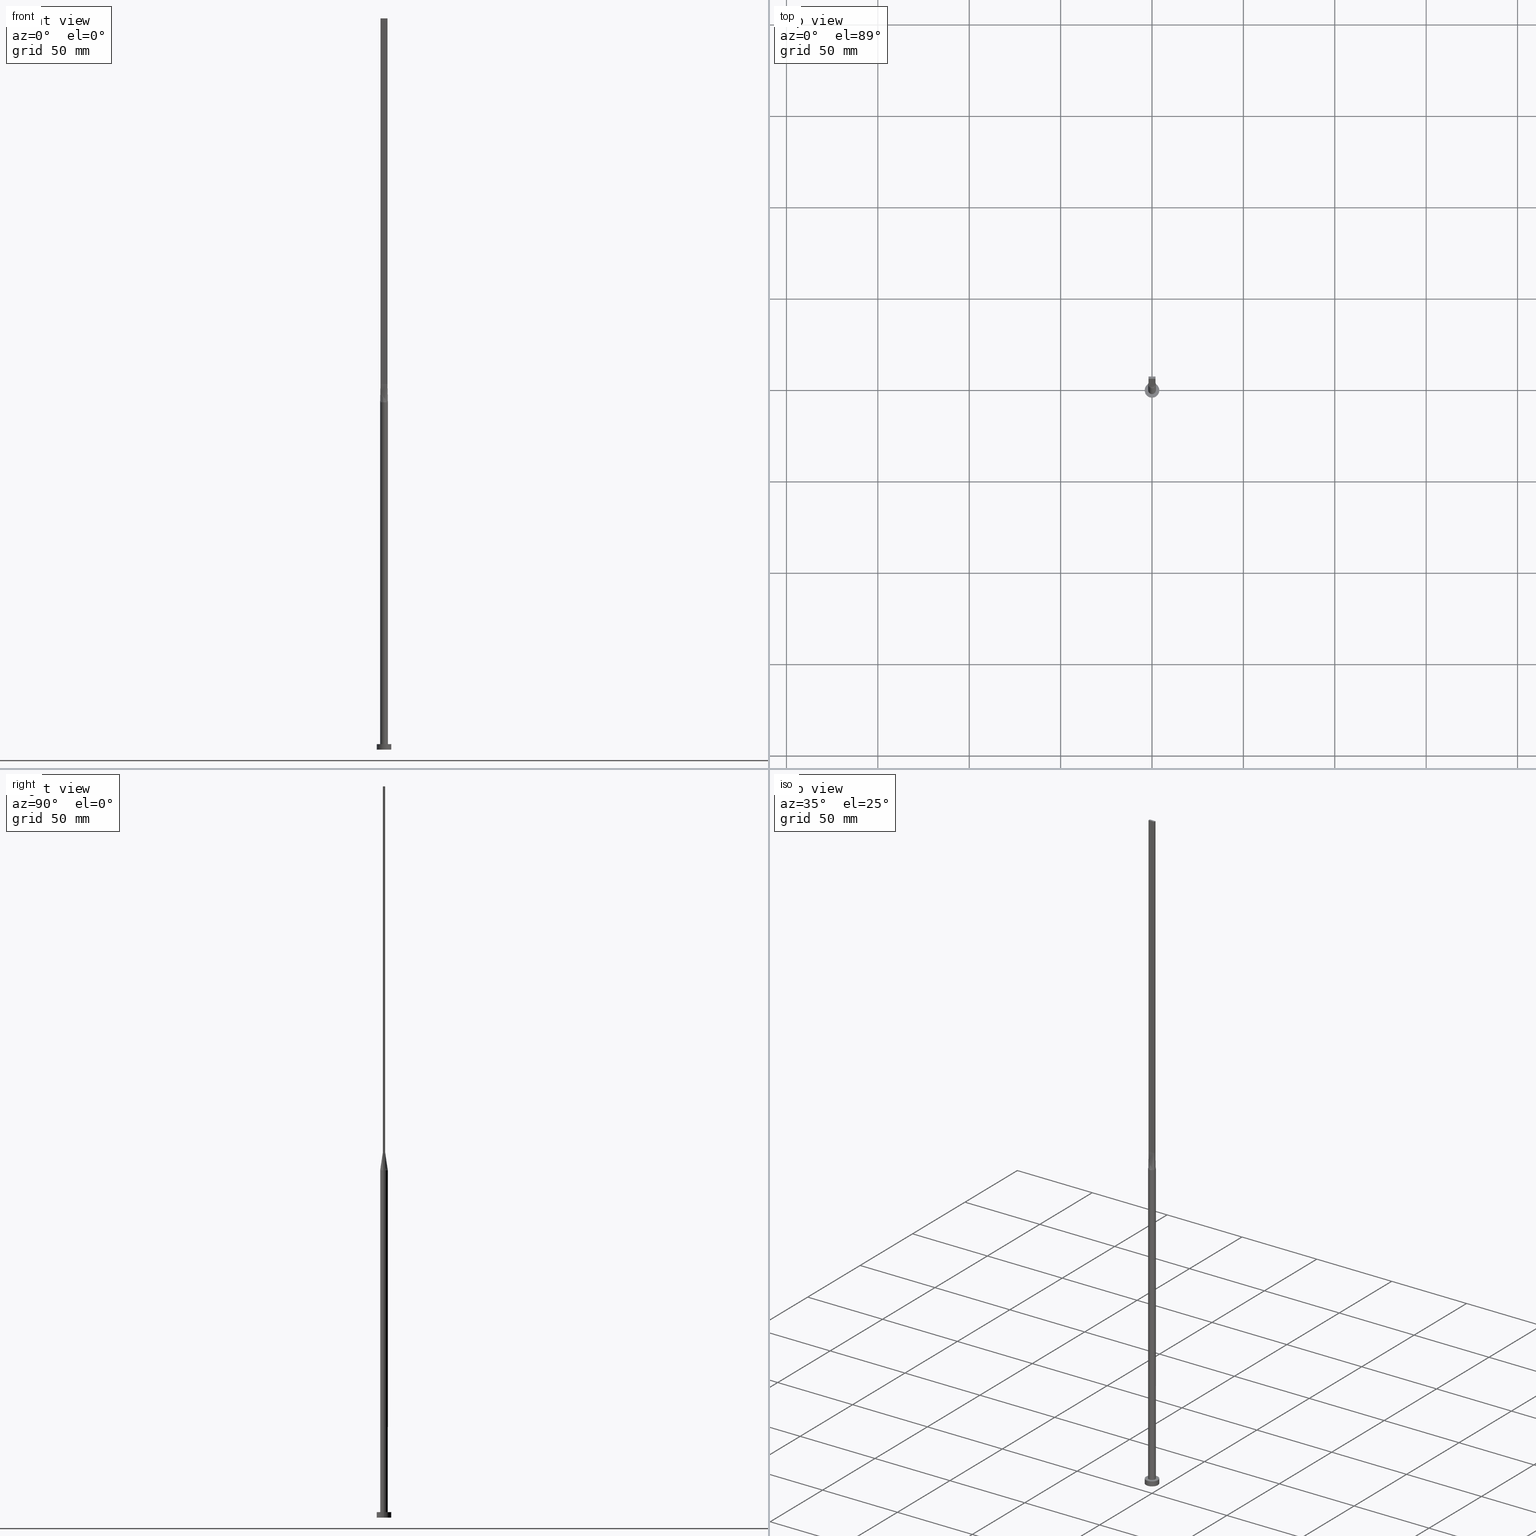
[diagram: canonical four-view strip — front | top / right | iso, engineering-drawing reading convention]
A machine part, canonical four-view strip (front | top / right | iso — engineering-drawing reading convention). The complete STEP part file that produces these views, byte-faithful:
ISO-10303-21;
HEADER;
FILE_DESCRIPTION (( 'STEP AP203' ),
    '1' );
FILE_NAME ('0027.STEP',
    '2023-02-13T13:18:16',
    ( '' ),
    ( '' ),
    'SwSTEP 2.0',
    'SolidWorks 2019',
    '' );
FILE_SCHEMA (( 'CONFIG_CONTROL_DESIGN' ));
ENDSEC;

DATA;
#1 = ORIENTED_EDGE ( 'NONE', *, *, #455, .T. ) ;
#2 = EDGE_CURVE ( 'NONE', #216, #61, #432, .T. ) ;
#3 = CARTESIAN_POINT ( 'NONE',  ( -1.899999999999999467, 0.3999999999999995226, 200.0000000000000000 ) ) ;
#4 = CARTESIAN_POINT ( 'NONE',  ( -1.741666666666666474, -0.5999999999999994227, 200.0000000000000000 ) ) ;
#5 = ORIENTED_EDGE ( 'NONE', *, *, #483, .F. ) ;
#6 = PLANE ( 'NONE',  #385 ) ;
#7 = APPROVAL_PERSON_ORGANIZATION ( #375, #390, #331 ) ;
#8 = CARTESIAN_POINT ( 'NONE',  ( -1.529462611013499451, 1.456669187245239527, 190.0000000000000000 ) ) ;
#9 = CARTESIAN_POINT ( 'NONE',  ( -1.184262492297964098, -1.748903470433446294, 189.9999999999999716 ) ) ;
#10 = EDGE_LOOP ( 'NONE', ( #75, #365, #457, #434 ) ) ;
#11 = CARTESIAN_POINT ( 'NONE',  ( 1.899999999999999467, 0.4000000000000005218, 200.0000000000000000 ) ) ;
#12 = CARTESIAN_POINT ( 'NONE',  ( 1.899999999999999689, 0.6000000000000001998, 200.0000000000000000 ) ) ;
#13 = ORIENTED_EDGE ( 'NONE', *, *, #519, .T. ) ;
#14 = VECTOR ( 'NONE', #33, 1000.000000000000000 ) ;
#15 = ORIENTED_EDGE ( 'NONE', *, *, #237, .F. ) ;
#16 = CARTESIAN_POINT ( 'NONE',  ( -2.100000000000000089, -1.284268198382905442E-16, 190.0000000000000000 ) ) ;
#17 = VERTEX_POINT ( 'NONE', #12 ) ;
#18 = CARTESIAN_POINT ( 'NONE',  ( 0.7916666666666656305, -0.5999999999999996447, 200.0000000000000000 ) ) ;
#19 = LINE ( 'NONE', #232, #167 ) ;
#20 = CARTESIAN_POINT ( 'NONE',  ( -1.899999999999999911, -0.5999999999999995337, 400.0000000000000000 ) ) ;
#21 = EDGE_CURVE ( 'NONE', #563, #323, #461, .T. ) ;
#22 = FACE_OUTER_BOUND ( 'NONE', #10, .T. ) ;
#23 = DIRECTION ( 'NONE',  ( 5.706327223607920020E-17, 1.000000000000000000, -0.000000000000000000 ) ) ;
#24 = PERSON_AND_ORGANIZATION ( #182, #506 ) ;
#25 = AXIS2_PLACEMENT_3D ( 'NONE', #307, #48, #487 ) ;
#26 = PLANE ( 'NONE',  #522 ) ;
#27 = EDGE_CURVE ( 'NONE', #39, #323, #450, .T. ) ;
#28 = MANIFOLD_SOLID_BREP ( 'P�idat vysunut�m5', #142 ) ;
#29 = CARTESIAN_POINT ( 'NONE',  ( -1.741666666666666474, 0.6000000000000000888, 200.0000000000000000 ) ) ;
#30 = COORDINATED_UNIVERSAL_TIME_OFFSET ( 1, 0, .AHEAD. ) ;
#31 = CYLINDRICAL_SURFACE ( 'NONE', #466, 2.100000000000000089 ) ;
#32 = DIRECTION ( 'NONE',  ( 0.000000000000000000, 0.000000000000000000, 1.000000000000000000 ) ) ;
#33 = DIRECTION ( 'NONE',  ( -0.000000000000000000, -0.000000000000000000, -1.000000000000000000 ) ) ;
#34 = SECURITY_CLASSIFICATION_LEVEL ( 'unclassified' ) ;
#35 = LOCAL_TIME ( 14, 18, 16.00000000000000000, #30 ) ;
#36 = CARTESIAN_POINT ( 'NONE',  ( 0.000000000000000000, 0.000000000000000000, 3.000000000000000000 ) ) ;
#37 = CARTESIAN_POINT ( 'NONE',  ( 1.667357759214464830, -1.291791096182927534, 190.0000000000000568 ) ) ;
#38 = EDGE_CURVE ( 'NONE', #283, #536, #227, .T. ) ;
#39 = VERTEX_POINT ( 'NONE', #371 ) ;
#40 = CARTESIAN_POINT ( 'NONE',  ( 1.583333333333332149, -0.5999999999999996447, 200.0000000000000000 ) ) ;
#41 = EDGE_LOOP ( 'NONE', ( #532, #272, #58, #57 ) ) ;
#42 = DIRECTION ( 'NONE',  ( 0.000000000000000000, 0.000000000000000000, 1.000000000000000000 ) ) ;
#43 = LINE ( 'NONE', #215, #476 ) ;
#44 = ORIENTED_EDGE ( 'NONE', *, *, #45, .F. ) ;
#45 = EDGE_CURVE ( 'NONE', #39, #557, #373, .T. ) ;
#46 = PRODUCT ( '0027', '0027', '', ( #239 ) ) ;
#47 = CARTESIAN_POINT ( 'NONE',  ( -0.9765948449220485106, -1.875594675604967509, 190.0000000000000284 ) ) ;
#48 = DIRECTION ( 'NONE',  ( 0.000000000000000000, 0.000000000000000000, 1.000000000000000000 ) ) ;
#49 = UNCERTAINTY_MEASURE_WITH_UNIT (LENGTH_MEASURE( 1.000000000000000082E-05 ), #545, 'distance_accuracy_value', 'NONE');
#50 = DIRECTION ( 'NONE',  ( 1.000000000000000000, -1.776356839400250465E-15, 0.000000000000000000 ) ) ;
#51 = CARTESIAN_POINT ( 'NONE',  ( -0.9765948449220482885, 1.875594675604967509, 189.9999999999999716 ) ) ;
#52 = CARTESIAN_POINT ( 'NONE',  ( -1.529462611013499229, -1.456669187245239749, 189.9999999999999716 ) ) ;
#53 = AXIS2_PLACEMENT_3D ( 'NONE', #436, #312, #82 ) ;
#54 = AXIS2_PLACEMENT_3D ( 'NONE', #515, #236, #416 ) ;
#55 = AXIS2_PLACEMENT_3D ( 'NONE', #209, #42, #124 ) ;
#56 = CARTESIAN_POINT ( 'NONE',  ( -1.952271707612931895, 0.7915068550356629817, 190.0000000000000568 ) ) ;
#57 = ORIENTED_EDGE ( 'NONE', *, *, #290, .T. ) ;
#58 = ORIENTED_EDGE ( 'NONE', *, *, #304, .F. ) ;
#59 = CARTESIAN_POINT ( 'NONE',  ( -1.899999999999999911, -0.5999999999999995337, 200.0000000000000000 ) ) ;
#60 = ADVANCED_FACE ( 'NONE', ( #269 ), #6, .F. ) ;
#61 = VERTEX_POINT ( 'NONE', #228 ) ;
#62 = CARTESIAN_POINT ( 'NONE',  ( 1.529462611013499451, 1.456669187245239527, 190.0000000000000284 ) ) ;
#63 = CARTESIAN_POINT ( 'NONE',  ( -1.899999999999999911, -0.5999999999999995337, 200.0000000000000000 ) ) ;
#64 = CARTESIAN_POINT ( 'NONE',  ( 0.000000000000000000, 0.000000000000000000, 3.000000000000000000 ) ) ;
#65 = CARTESIAN_POINT ( 'NONE',  ( -1.108333333333333393, 0.6000000000000000888, 200.0000000000000000 ) ) ;
#66 = CALENDAR_DATE ( 2023, 13, 2 ) ;
#67 = ORIENTED_EDGE ( 'NONE', *, *, #483, .T. ) ;
#68 = CARTESIAN_POINT ( 'NONE',  ( -0.2565105576742081062, -2.100000000000000089, 190.0000000000000284 ) ) ;
#69 = PLANE ( 'NONE',  #213 ) ;
#70 = CARTESIAN_POINT ( 'NONE',  ( -2.002523596781697890, 0.6323758726679044040, 190.0000000000000000 ) ) ;
#71 = VECTOR ( 'NONE', #369, 1000.000000000000000 ) ;
#72 = CARTESIAN_POINT ( 'NONE',  ( 0.9765948449220478444, -1.875594675604967954, 189.9999999999999716 ) ) ;
#73 = CYLINDRICAL_SURFACE ( 'NONE', #341, 4.000000000000000000 ) ;
#74 = CARTESIAN_POINT ( 'NONE',  ( 0.5124799074986362557, 2.051574327850739454, 190.0000000000000284 ) ) ;
#75 = ORIENTED_EDGE ( 'NONE', *, *, #21, .T. ) ;
#76 = CARTESIAN_POINT ( 'NONE',  ( 2.099999999999999645, -0.2158003972066312171, 190.0000000000000000 ) ) ;
#77 = LINE ( 'NONE', #250, #14 ) ;
#78 = DATE_AND_TIME ( #574, #420 ) ;
#79 = SHAPE_DEFINITION_REPRESENTATION ( #90, #303 ) ;
#80 = EDGE_LOOP ( 'NONE', ( #144, #358, #211, #550 ) ) ;
#81 = EDGE_CURVE ( 'NONE', #323, #17, #364, .T. ) ;
#82 = DIRECTION ( 'NONE',  ( 1.000000000000000000, 0.000000000000000000, 0.000000000000000000 ) ) ;
#83 = DIRECTION ( 'NONE',  ( 1.000000000000000000, 0.000000000000000000, 0.000000000000000000 ) ) ;
#84 = VECTOR ( 'NONE', #178, 1000.000000000000114 ) ;
#85 = ORIENTED_EDGE ( 'NONE', *, *, #38, .T. ) ;
#86 = EDGE_CURVE ( 'NONE', #186, #536, #554, .T. ) ;
#87 = DATE_AND_TIME ( #520, #222 ) ;
#88 = DESIGN_CONTEXT ( 'detailed design', #445, 'design' ) ;
#89 = CARTESIAN_POINT ( 'NONE',  ( 1.952271707612931895, 0.7915068550356627597, 190.0000000000000000 ) ) ;
#90 = PRODUCT_DEFINITION_SHAPE ( 'NONE', 'NONE',  #497 ) ;
#91 = DIRECTION ( 'NONE',  ( 1.000000000000000000, -5.706327223607918787E-17, 0.000000000000000000 ) ) ;
#92 = CARTESIAN_POINT ( 'NONE',  ( -1.899999999999999467, 0.1999999999999992895, 200.0000000000000000 ) ) ;
#93 = CARTESIAN_POINT ( 'NONE',  ( -1.952271707612931895, -0.7915068550356626487, 189.9999999999999716 ) ) ;
#94 = ORIENTED_EDGE ( 'NONE', *, *, #219, .F. ) ;
#95 = DIRECTION ( 'NONE',  ( 0.000000000000000000, 0.000000000000000000, 1.000000000000000000 ) ) ;
#96 = VERTEX_POINT ( 'NONE', #20 ) ;
#97 = CARTESIAN_POINT ( 'NONE',  ( -1.899999999999999689, 0.6000000000000001998, 200.0000000000000000 ) ) ;
#98 = DIRECTION ( 'NONE',  ( -0.000000000000000000, -0.000000000000000000, -1.000000000000000000 ) ) ;
#99 = EDGE_CURVE ( 'NONE', #96, #563, #405, .T. ) ;
#100 = AXIS2_PLACEMENT_3D ( 'NONE', #489, #490, #83 ) ;
#101 = CARTESIAN_POINT ( 'NONE',  ( -0.7916666666666668517, -0.5999999999999994227, 200.0000000000000000 ) ) ;
#102 = ORIENTED_EDGE ( 'NONE', *, *, #381, .F. ) ;
#103 = VERTEX_POINT ( 'NONE', #16 ) ;
#104 = CC_DESIGN_DATE_AND_TIME_ASSIGNMENT ( #110, #203, ( #497 ) ) ;
#105 = EDGE_LOOP ( 'NONE', ( #254, #412, #240, #1 ) ) ;
#106 = ORIENTED_EDGE ( 'NONE', *, *, #328, .F. ) ;
#107 = LOCAL_TIME ( 14, 18, 16.00000000000000000, #428 ) ;
#108 = DIRECTION ( 'NONE',  ( 1.807003620809174878E-16, 1.000000000000000000, 0.000000000000000000 ) ) ;
#109 = CARTESIAN_POINT ( 'NONE',  ( -0.7916666666666666297, 0.6000000000000000888, 200.0000000000000284 ) ) ;
#110 = DATE_AND_TIME ( #207, #35 ) ;
#111 = ORIENTED_EDGE ( 'NONE', *, *, #568, .T. ) ;
#112 = CARTESIAN_POINT ( 'NONE',  ( -1.529462611013499451, 1.456669187245239527, 190.0000000000000000 ) ) ;
#113 = APPROVAL_ROLE ( '' ) ;
#114 = AXIS2_PLACEMENT_3D ( 'NONE', #411, #192, #50 ) ;
#115 = CARTESIAN_POINT ( 'NONE',  ( -1.899999999999999689, 0.6000000000000001998, 200.0000000000000000 ) ) ;
#116 = ORIENTED_EDGE ( 'NONE', *, *, #313, .T. ) ;
#117 = FACE_OUTER_BOUND ( 'NONE', #280, .T. ) ;
#118 = CARTESIAN_POINT ( 'NONE',  ( -1.583333333333333259, 0.6000000000000000888, 200.0000000000000000 ) ) ;
#119 = FACE_OUTER_BOUND ( 'NONE', #41, .T. ) ;
#120 = LINE ( 'NONE', #229, #71 ) ;
#121 = DATE_TIME_ROLE ( 'classification_date' ) ;
#122 = ADVANCED_FACE ( 'NONE', ( #456 ), #181, .T. ) ;
#123 = VECTOR ( 'NONE', #360, 1000.000000000000000 ) ;
#124 = DIRECTION ( 'NONE',  ( 1.000000000000000000, 0.000000000000000000, 0.000000000000000000 ) ) ;
#125 = CARTESIAN_POINT ( 'NONE',  ( -1.899999999999999689, 0.6000000000000001998, 400.0000000000000000 ) ) ;
#126 = ORIENTED_EDGE ( 'NONE', *, *, #464, .T. ) ;
#127 = CARTESIAN_POINT ( 'NONE',  ( 0.000000000000000000, 0.000000000000000000, 190.0000000000000000 ) ) ;
#128 = EDGE_CURVE ( 'NONE', #563, #470, #465, .T. ) ;
#129 = CARTESIAN_POINT ( 'NONE',  ( -2.002523596781697890, -0.6323758726679044040, 190.0000000000000000 ) ) ;
#130 = CARTESIAN_POINT ( 'NONE',  ( 0.000000000000000000, 0.000000000000000000, 3.000000000000000000 ) ) ;
#131 = VECTOR ( 'NONE', #383, 1000.000000000000114 ) ;
#132 = ORIENTED_EDGE ( 'NONE', *, *, #430, .F. ) ;
#133 = APPROVAL_DATE_TIME ( #87, #163 ) ;
#134 = CIRCLE ( 'NONE', #409, 2.100000000000000089 ) ;
#135 = CARTESIAN_POINT ( 'NONE',  ( -1.899999999999999911, -0.5999999999999995337, 400.0000000000000000 ) ) ;
#136 = CARTESIAN_POINT ( 'NONE',  ( -1.878511276496549032, 0.9591670956957809580, 190.0000000000000853 ) ) ;
#137 = CARTESIAN_POINT ( 'NONE',  ( 1.899999999999999689, 0.6000000000000001998, 200.0000000000000000 ) ) ;
#138 = ORIENTED_EDGE ( 'NONE', *, *, #335, .T. ) ;
#139 = FACE_OUTER_BOUND ( 'NONE', #449, .T. ) ;
#140 = EDGE_CURVE ( 'NONE', #172, #17, #155, .T. ) ;
#141 = CARTESIAN_POINT ( 'NONE',  ( 1.899999999999999689, 0.6000000000000001998, 400.0000000000000000 ) ) ;
#142 = CLOSED_SHELL ( 'NONE', ( #122, #395, #370, #257, #402, #535, #529, #553, #561, #145, #60, #346, #179, #423, #543 ) ) ;
#143 = ORIENTED_EDGE ( 'NONE', *, *, #205, .F. ) ;
#144 = ORIENTED_EDGE ( 'NONE', *, *, #328, .T. ) ;
#145 = ADVANCED_FACE ( 'NONE', ( #288 ), #548, .T. ) ;
#146 = DIRECTION ( 'NONE',  ( -1.000000000000000000, 0.000000000000000000, 0.000000000000000000 ) ) ;
#147 = ORIENTED_EDGE ( 'NONE', *, *, #509, .F. ) ;
#148 = CARTESIAN_POINT ( 'NONE',  ( 1.741666666666666474, 0.6000000000000001998, 200.0000000000000000 ) ) ;
#149 = ORIENTED_EDGE ( 'NONE', *, *, #464, .F. ) ;
#150 = CARTESIAN_POINT ( 'NONE',  ( -0.1583333333333337423, 0.6000000000000000888, 200.0000000000000568 ) ) ;
#151 = EDGE_LOOP ( 'NONE', ( #408, #138 ) ) ;
#152 = CARTESIAN_POINT ( 'NONE',  ( -0.9765948449220482885, 1.875594675604967509, 189.9999999999999716 ) ) ;
#153 = COORDINATED_UNIVERSAL_TIME_OFFSET ( 1, 0, .AHEAD. ) ;
#154 = PRODUCT_RELATED_PRODUCT_CATEGORY ( 'detail', '', ( #46 ) ) ;
#155 = LINE ( 'NONE', #467, #577 ) ;
#156 = DIRECTION ( 'NONE',  ( 0.000000000000000000, 0.000000000000000000, 1.000000000000000000 ) ) ;
#157 = DIRECTION ( 'NONE',  ( 0.000000000000000000, 0.000000000000000000, 1.000000000000000000 ) ) ;
#158 = CARTESIAN_POINT ( 'NONE',  ( -1.184262492297963876, 1.748903470433446294, 190.0000000000000284 ) ) ;
#159 = DATE_AND_TIME ( #66, #107 ) ;
#160 = CARTESIAN_POINT ( 'NONE',  ( 1.899999999999999467, 0.2000000000000006772, 200.0000000000000000 ) ) ;
#161 = CC_DESIGN_APPROVAL ( #163, ( #177 ) ) ;
#162 = LINE ( 'NONE', #486, #263 ) ;
#163 = APPROVAL ( #194, 'NEUR�EN�' ) ;
#164 = ORIENTED_EDGE ( 'NONE', *, *, #81, .F. ) ;
#165 = CARTESIAN_POINT ( 'NONE',  ( 4.000000000000000000, 4.898587196589412829E-16, 0.000000000000000000 ) ) ;
#166 = DIRECTION ( 'NONE',  ( -0.000000000000000000, -0.000000000000000000, -1.000000000000000000 ) ) ;
#167 = VECTOR ( 'NONE', #424, 1000.000000000000000 ) ;
#168 = AXIS2_PLACEMENT_3D ( 'NONE', #567, #156, #530 ) ;
#169 = ORIENTED_EDGE ( 'NONE', *, *, #198, .T. ) ;
#170 = CARTESIAN_POINT ( 'NONE',  ( 0.9765948449220478444, 1.875594675604967065, 189.9999999999999716 ) ) ;
#171 = DIRECTION ( 'NONE',  ( -1.807003620809174632E-16, -1.000000000000000000, 0.000000000000000000 ) ) ;
#172 = VERTEX_POINT ( 'NONE', #238 ) ;
#173 = B_SPLINE_SURFACE_WITH_KNOTS ( 'NONE', 3, 1, ( 
 ( #319, #448 ),
 ( #93, #4 ),
 ( #180, #453 ),
 ( #355, #176 ),
 ( #52, #546 ),
 ( #9, #101 ),
 ( #47, #399 ),
 ( #318, #502 ),
 ( #68, #241 ),
 ( #235, #419 ),
 ( #329, #562 ),
 ( #72, #199 ),
 ( #406, #18 ),
 ( #368, #510 ),
 ( #37, #306 ),
 ( #302, #40 ),
 ( #255, #433 ),
 ( #338, #392 ) ),
 .UNSPECIFIED., .F., .F., .F.,
 ( 4, 2, 2, 2, 2, 2, 2, 2, 4 ),
 ( 2, 2 ),
 ( 0.000000000000000000, 0.1250000000000000833, 0.2500000000000001110, 0.3750000000000001110, 0.5000000000000001110, 0.6250000000000001110, 0.7500000000000000000, 0.8750000000000000000, 1.000000000000000000 ),
 ( 0.000000000000000000, 1.000000000000000000 ),
 .UNSPECIFIED. ) ;
#174 = EDGE_LOOP ( 'NONE', ( #463, #469, #397, #446 ) ) ;
#175 = CARTESIAN_POINT ( 'NONE',  ( -1.899999999999999911, -0.5999999999999995337, 200.0000000000000000 ) ) ;
#176 = CARTESIAN_POINT ( 'NONE',  ( -1.266666666666666607, -0.5999999999999994227, 200.0000000000000000 ) ) ;
#177 = SECURITY_CLASSIFICATION ( '', '', #34 ) ;
#178 = DIRECTION ( 'NONE',  ( -0.01025176717979718773, 0.003237400162041167029, 0.9999422085850171449 ) ) ;
#179 = ADVANCED_FACE ( 'NONE', ( #22 ), #26, .F. ) ;
#180 = CARTESIAN_POINT ( 'NONE',  ( -1.878511276496548144, -0.9591670956957798477, 190.0000000000000568 ) ) ;
#181 = CYLINDRICAL_SURFACE ( 'NONE', #539, 2.100000000000000089 ) ;
#182 = PERSON ( 'NEUR�EN�', 'NEUR�EN�', 'NEUR�EN�', ('NEUR�EN�'), ('NEUR�EN�'), ('NEUR�EN�') ) ;
#183 = CARTESIAN_POINT ( 'NONE',  ( 1.899999999999999689, 0.6000000000000001998, 200.0000000000000000 ) ) ;
#184 = DIRECTION ( 'NONE',  ( 0.000000000000000000, 0.000000000000000000, 1.000000000000000000 ) ) ;
#185 = DIRECTION ( 'NONE',  ( 0.000000000000000000, -1.000000000000000000, 0.000000000000000000 ) ) ;
#186 = VERTEX_POINT ( 'NONE', #247 ) ;
#187 = LINE ( 'NONE', #267, #494 ) ;
#188 = EDGE_CURVE ( 'NONE', #61, #563, #193, .T. ) ;
#189 = CARTESIAN_POINT ( 'NONE',  ( 0.000000000000000000, 0.000000000000000000, 190.0000000000000000 ) ) ;
#190 = AXIS2_PLACEMENT_3D ( 'NONE', #348, #256, #435 ) ;
#191 = DIRECTION ( 'NONE',  ( 1.000000000000000000, 0.000000000000000000, 0.000000000000000000 ) ) ;
#192 = DIRECTION ( 'NONE',  ( 0.000000000000000000, 0.000000000000000000, 1.000000000000000000 ) ) ;
#193 = LINE ( 'NONE', #115, #259 ) ;
#194 = APPROVAL_STATUS ( 'not_yet_approved' ) ;
#195 = B_SPLINE_CURVE_WITH_KNOTS ( 'NONE', 3,
 ( #354, #89, #451, #261, #317, #394, #170, #270, #398, #549, #309, #51, #458, #8, #495, #136, #56, #492 ),
 .UNSPECIFIED., .F., .F.,
 ( 4, 2, 2, 2, 2, 2, 2, 2, 4 ),
 ( 0.000000000000000000, 0.1249999999999999167, 0.2499999999999998890, 0.3749999999999998335, 0.4999999999999998890, 0.6249999999999998890, 0.7499999999999998890, 0.8750000000000000000, 1.000000000000000000 ),
 .UNSPECIFIED. ) ;
#196 = CARTESIAN_POINT ( 'NONE',  ( -0.3166666666666669294, 0.6000000000000000888, 200.0000000000000568 ) ) ;
#197 = PERSON_AND_ORGANIZATION ( #182, #506 ) ;
#198 = EDGE_CURVE ( 'NONE', #96, #442, #293, .T. ) ;
#199 = CARTESIAN_POINT ( 'NONE',  ( 0.6333333333333325266, -0.5999999999999996447, 200.0000000000000000 ) ) ;
#200 = DIRECTION ( 'NONE',  ( -1.807003620809174632E-16, -1.000000000000000000, 0.000000000000000000 ) ) ;
#201 = DATE_AND_TIME ( #479, #443 ) ;
#202 = CARTESIAN_POINT ( 'NONE',  ( 0.3166666666666664298, 0.6000000000000000888, 200.0000000000000284 ) ) ;
#203 = DATE_TIME_ROLE ( 'creation_date' ) ;
#204 = CARTESIAN_POINT ( 'NONE',  ( 2.100000000000000089, 0.2158003972066308285, 189.9999999999999432 ) ) ;
#205 = EDGE_CURVE ( 'NONE', #103, #508, #77, .T. ) ;
#206 = CARTESIAN_POINT ( 'NONE',  ( -1.899999999999999689, 0.6000000000000001998, 400.0000000000000000 ) ) ;
#207 = CALENDAR_DATE ( 2023, 13, 2 ) ;
#208 = AXIS2_PLACEMENT_3D ( 'NONE', #289, #344, #380 ) ;
#209 = CARTESIAN_POINT ( 'NONE',  ( 0.000000000000000000, 0.000000000000000000, 190.0000000000000000 ) ) ;
#210 = DIRECTION ( 'NONE',  ( 1.000000000000000000, 0.000000000000000000, -0.000000000000000000 ) ) ;
#211 = ORIENTED_EDGE ( 'NONE', *, *, #21, .F. ) ;
#212 = FACE_OUTER_BOUND ( 'NONE', #332, .T. ) ;
#213 = AXIS2_PLACEMENT_3D ( 'NONE', #246, #372, #108 ) ;
#214 = PLANE ( 'NONE',  #321 ) ;
#215 = CARTESIAN_POINT ( 'NONE',  ( 1.899999999999999023, -0.5999999999999997558, 400.0000000000000000 ) ) ;
#216 = VERTEX_POINT ( 'NONE', #206 ) ;
#217 =( NAMED_UNIT ( * ) PLANE_ANGLE_UNIT ( ) SI_UNIT ( $, .RADIAN. ) );
#218 = CARTESIAN_POINT ( 'NONE',  ( 2.100000000000000089, 2.571758278209441957E-16, 3.000000000000000000 ) ) ;
#219 = EDGE_CURVE ( 'NONE', #186, #353, #230, .T. ) ;
#220 = CARTESIAN_POINT ( 'NONE',  ( 1.951261798390848901, -0.6161879363339519688, 195.0000000000000000 ) ) ;
#221 = DIRECTION ( 'NONE',  ( 1.000000000000000000, 0.000000000000000000, 0.000000000000000000 ) ) ;
#222 = LOCAL_TIME ( 14, 18, 16.00000000000000000, #334 ) ;
#223 = DIRECTION ( 'NONE',  ( -0.000000000000000000, -0.000000000000000000, -1.000000000000000000 ) ) ;
#224 = ORIENTED_EDGE ( 'NONE', *, *, #313, .F. ) ;
#225 = CARTESIAN_POINT ( 'NONE',  ( 1.899999999999999689, 0.6000000000000001998, 400.0000000000000000 ) ) ;
#226 = EDGE_CURVE ( 'NONE', #103, #470, #300, .T. ) ;
#227 = CIRCLE ( 'NONE', #297, 4.000000000000000000 ) ;
#228 = CARTESIAN_POINT ( 'NONE',  ( -1.899999999999999689, 0.6000000000000001998, 200.0000000000000000 ) ) ;
#229 = CARTESIAN_POINT ( 'NONE',  ( 1.899999999999999023, -0.5999999999999997558, 400.0000000000000000 ) ) ;
#230 = CIRCLE ( 'NONE', #25, 4.000000000000000000 ) ;
#231 = APPROVAL_PERSON_ORGANIZATION ( #251, #472, #113 ) ;
#232 = CARTESIAN_POINT ( 'NONE',  ( 4.000000000000000000, 4.898587196589412829E-16, 3.000000000000000000 ) ) ;
#233 = CARTESIAN_POINT ( 'NONE',  ( -0.5124799074986362557, 2.051574327850739454, 190.0000000000000284 ) ) ;
#234 = PERSON_AND_ORGANIZATION_ROLE ( 'design_owner' ) ;
#235 = CARTESIAN_POINT ( 'NONE',  ( 0.2565105576742072735, -2.100000000000000533, 189.9999999999999716 ) ) ;
#236 = DIRECTION ( 'NONE',  ( 0.000000000000000000, 0.000000000000000000, 1.000000000000000000 ) ) ;
#237 = EDGE_CURVE ( 'NONE', #275, #103, #377, .T. ) ;
#238 = CARTESIAN_POINT ( 'NONE',  ( 2.002598039528881380, 0.6323997261616642884, 190.0000000000000000 ) ) ;
#239 = MECHANICAL_CONTEXT ( 'NONE', #410, 'mechanical' ) ;
#240 = ORIENTED_EDGE ( 'NONE', *, *, #519, .F. ) ;
#241 = CARTESIAN_POINT ( 'NONE',  ( -0.1583333333333340753, -0.5999999999999995337, 200.0000000000000000 ) ) ;
#242 = DIRECTION ( 'NONE',  ( -0.000000000000000000, -0.000000000000000000, -1.000000000000000000 ) ) ;
#243 = CARTESIAN_POINT ( 'NONE',  ( -1.899999999999999911, -0.5999999999999995337, 400.0000000000000000 ) ) ;
#244 = AXIS2_PLACEMENT_3D ( 'NONE', #413, #157, #285 ) ;
#245 = CC_DESIGN_APPROVAL ( #472, ( #356 ) ) ;
#246 = CARTESIAN_POINT ( 'NONE',  ( -1.899999999999999689, 0.6000000000000001998, 400.0000000000000000 ) ) ;
#247 = CARTESIAN_POINT ( 'NONE',  ( -4.000000000000000000, 0.000000000000000000, 3.000000000000000000 ) ) ;
#248 = EDGE_CURVE ( 'NONE', #216, #96, #576, .T. ) ;
#249 = PLANE ( 'NONE',  #389 ) ;
#250 = CARTESIAN_POINT ( 'NONE',  ( -2.100000000000000089, 0.000000000000000000, 190.0000000000000000 ) ) ;
#251 = PERSON_AND_ORGANIZATION ( #182, #506 ) ;
#252 = DIRECTION ( 'NONE',  ( 0.000000000000000000, 0.000000000000000000, 1.000000000000000000 ) ) ;
#253 = PLANE ( 'NONE',  #533 ) ;
#254 = ORIENTED_EDGE ( 'NONE', *, *, #438, .T. ) ;
#255 = CARTESIAN_POINT ( 'NONE',  ( 1.952271707612932339, -0.7915068550356634258, 190.0000000000000284 ) ) ;
#256 = DIRECTION ( 'NONE',  ( -0.000000000000000000, -0.000000000000000000, -1.000000000000000000 ) ) ;
#257 = ADVANCED_FACE ( 'NONE', ( #343, #260 ), #253, .T. ) ;
#258 = EDGE_LOOP ( 'NONE', ( #132, #149 ) ) ;
#259 = VECTOR ( 'NONE', #200, 1000.000000000000000 ) ;
#260 = FACE_OUTER_BOUND ( 'NONE', #151, .T. ) ;
#261 = CARTESIAN_POINT ( 'NONE',  ( 1.667357759214464608, 1.291791096182927090, 190.0000000000000284 ) ) ;
#262 = DIRECTION ( 'NONE',  ( 0.01025176717979708017, -0.003237400162041144912, 0.9999422085850171449 ) ) ;
#263 = VECTOR ( 'NONE', #305, 1000.000000000000000 ) ;
#264 = ORIENTED_EDGE ( 'NONE', *, *, #335, .F. ) ;
#265 = CARTESIAN_POINT ( 'NONE',  ( -2.065999667310664645, -0.4313683159928413113, 190.0000000000000000 ) ) ;
#266 = CC_DESIGN_PERSON_AND_ORGANIZATION_ASSIGNMENT ( #340, #482, ( #356 ) ) ;
#267 = CARTESIAN_POINT ( 'NONE',  ( -1.951261798390848901, 0.6161879363339521909, 195.0000000000000000 ) ) ;
#268 = B_SPLINE_SURFACE_WITH_KNOTS ( 'NONE', 3, 1, ( 
 ( #572, #429 ),
 ( #292, #480 ),
 ( #76, #426 ),
 ( #204, #160 ),
 ( #540, #11 ),
 ( #350, #183 ) ),
 .UNSPECIFIED., .F., .F., .F.,
 ( 4, 2, 4 ),
 ( 2, 2 ),
 ( 0.000000000000000000, 0.5000000000000000000, 1.000000000000000000 ),
 ( 0.000000000000000000, 1.000000000000000000 ),
 .UNSPECIFIED. ) ;
#269 = FACE_OUTER_BOUND ( 'NONE', #105, .T. ) ;
#270 = CARTESIAN_POINT ( 'NONE',  ( 0.5124799074986362557, 2.051574327850739454, 190.0000000000000284 ) ) ;
#271 = CARTESIAN_POINT ( 'NONE',  ( 1.899999999999999023, -0.5999999999999997558, 400.0000000000000000 ) ) ;
#272 = ORIENTED_EDGE ( 'NONE', *, *, #455, .F. ) ;
#273 = CC_DESIGN_APPROVAL ( #390, ( #497 ) ) ;
#274 = CC_DESIGN_PERSON_AND_ORGANIZATION_ASSIGNMENT ( #24, #474, ( #356 ) ) ;
#275 = VERTEX_POINT ( 'NONE', #580 ) ;
#276 = VECTOR ( 'NONE', #382, 1000.000000000000000 ) ;
#277 = DIRECTION ( 'NONE',  ( 1.000000000000000000, 0.000000000000000000, 0.000000000000000000 ) ) ;
#278 = CARTESIAN_POINT ( 'NONE',  ( 1.667357759214464608, 1.291791096182927090, 190.0000000000000284 ) ) ;
#279 = CIRCLE ( 'NONE', #477, 2.100000000000000089 ) ;
#280 = EDGE_LOOP ( 'NONE', ( #393, #316, #325, #164, #308 ) ) ;
#281 = CC_DESIGN_DATE_AND_TIME_ASSIGNMENT ( #78, #121, ( #177 ) ) ;
#282 = APPROVAL_ROLE ( '' ) ;
#283 = VERTEX_POINT ( 'NONE', #165 ) ;
#284 = ORIENTED_EDGE ( 'NONE', *, *, #509, .T. ) ;
#285 = DIRECTION ( 'NONE',  ( 1.000000000000000000, 0.000000000000000000, 0.000000000000000000 ) ) ;
#286 = CARTESIAN_POINT ( 'NONE',  ( 1.266666666666666385, 0.6000000000000000888, 200.0000000000000000 ) ) ;
#287 = CARTESIAN_POINT ( 'NONE',  ( 0.000000000000000000, 0.000000000000000000, 3.000000000000000000 ) ) ;
#288 = FACE_OUTER_BOUND ( 'NONE', #499, .T. ) ;
#289 = CARTESIAN_POINT ( 'NONE',  ( 0.000000000000000000, 0.000000000000000000, 0.000000000000000000 ) ) ;
#290 = EDGE_CURVE ( 'NONE', #442, #323, #43, .T. ) ;
#291 = CIRCLE ( 'NONE', #54, 4.000000000000000000 ) ;
#292 = CARTESIAN_POINT ( 'NONE',  ( 2.065999667310664645, -0.4313683159928419775, 189.9999999999999716 ) ) ;
#293 = LINE ( 'NONE', #481, #276 ) ;
#294 = DIRECTION ( 'NONE',  ( -5.421010862427522170E-16, -1.000000000000000000, 0.000000000000000000 ) ) ;
#295 = APPLICATION_PROTOCOL_DEFINITION ( 'international standard', 'config_control_design', 1994, #410 ) ;
#296 = ORIENTED_EDGE ( 'NONE', *, *, #226, .T. ) ;
#297 = AXIS2_PLACEMENT_3D ( 'NONE', #504, #95, #277 ) ;
#298 = FACE_OUTER_BOUND ( 'NONE', #391, .T. ) ;
#299 = ORIENTED_EDGE ( 'NONE', *, *, #407, .F. ) ;
#300 = CIRCLE ( 'NONE', #53, 2.100000000000000089 ) ;
#301 = VECTOR ( 'NONE', #555, 1000.000000000000000 ) ;
#302 = CARTESIAN_POINT ( 'NONE',  ( 1.878511276496548366, -0.9591670956957810690, 190.0000000000000284 ) ) ;
#303 = ADVANCED_BREP_SHAPE_REPRESENTATION ( '0027', ( #28, #208 ), #544 ) ;
#304 = EDGE_CURVE ( 'NONE', #442, #518, #120, .T. ) ;
#305 = DIRECTION ( 'NONE',  ( -1.000000000000000000, -0.000000000000000000, -0.000000000000000000 ) ) ;
#306 = CARTESIAN_POINT ( 'NONE',  ( 1.266666666666665497, -0.5999999999999996447, 200.0000000000000000 ) ) ;
#307 = CARTESIAN_POINT ( 'NONE',  ( 0.000000000000000000, 0.000000000000000000, 3.000000000000000000 ) ) ;
#308 = ORIENTED_EDGE ( 'NONE', *, *, #27, .F. ) ;
#309 = CARTESIAN_POINT ( 'NONE',  ( -0.5124799074986362557, 2.051574327850739454, 190.0000000000000284 ) ) ;
#310 = B_SPLINE_SURFACE_WITH_KNOTS ( 'NONE', 3, 1, ( 
 ( #496, #97 ),
 ( #361, #3 ),
 ( #551, #92 ),
 ( #513, #468 ),
 ( #265, #327 ),
 ( #129, #63 ) ),
 .UNSPECIFIED., .F., .F., .F.,
 ( 4, 2, 4 ),
 ( 2, 2 ),
 ( 0.000000000000000000, 0.5000000000000000000, 1.000000000000000000 ),
 ( 0.000000000000000000, 1.000000000000000000 ),
 .UNSPECIFIED. ) ;
#311 = CARTESIAN_POINT ( 'NONE',  ( 1.899999999999999689, 0.6000000000000001998, 400.0000000000000000 ) ) ;
#312 = DIRECTION ( 'NONE',  ( 0.000000000000000000, 0.000000000000000000, 1.000000000000000000 ) ) ;
#313 = EDGE_CURVE ( 'NONE', #353, #283, #19, .T. ) ;
#314 = LINE ( 'NONE', #141, #301 ) ;
#315 = CARTESIAN_POINT ( 'NONE',  ( 1.899999999999999689, 0.6000000000000001998, 400.0000000000000000 ) ) ;
#316 = ORIENTED_EDGE ( 'NONE', *, *, #407, .T. ) ;
#317 = CARTESIAN_POINT ( 'NONE',  ( 1.529462611013499451, 1.456669187245239527, 190.0000000000000284 ) ) ;
#318 = CARTESIAN_POINT ( 'NONE',  ( -0.5124799074986365888, -2.051574327850738566, 189.9999999999999716 ) ) ;
#319 = CARTESIAN_POINT ( 'NONE',  ( -2.002523596781697890, -0.6323758726679042930, 190.0000000000000000 ) ) ;
#320 = AXIS2_PLACEMENT_3D ( 'NONE', #64, #376, #191 ) ;
#321 = AXIS2_PLACEMENT_3D ( 'NONE', #396, #351, #294 ) ;
#322 = CARTESIAN_POINT ( 'NONE',  ( -1.899999999999999689, 0.6000000000000001998, 400.0000000000000000 ) ) ;
#323 = VERTEX_POINT ( 'NONE', #569 ) ;
#324 = DIRECTION ( 'NONE',  ( -0.000000000000000000, -0.000000000000000000, -1.000000000000000000 ) ) ;
#325 = ORIENTED_EDGE ( 'NONE', *, *, #140, .T. ) ;
#326 = CARTESIAN_POINT ( 'NONE',  ( -1.878511276496549032, 0.9591670956957809580, 190.0000000000000853 ) ) ;
#327 = CARTESIAN_POINT ( 'NONE',  ( -1.899999999999999689, -0.4000000000000001887, 200.0000000000000000 ) ) ;
#328 = EDGE_CURVE ( 'NONE', #470, #39, #505, .T. ) ;
#329 = CARTESIAN_POINT ( 'NONE',  ( 0.5124799074986360337, -2.051574327850739454, 190.0000000000000284 ) ) ;
#330 = CARTESIAN_POINT ( 'NONE',  ( -1.951261798390848901, -0.6161879363339519688, 195.0000000000000000 ) ) ;
#331 = APPROVAL_ROLE ( '' ) ;
#332 = EDGE_LOOP ( 'NONE', ( #5, #44, #106, #578, #542, #514 ) ) ;
#333 = CARTESIAN_POINT ( 'NONE',  ( -0.6333333333333334147, 0.6000000000000000888, 200.0000000000000284 ) ) ;
#334 = COORDINATED_UNIVERSAL_TIME_OFFSET ( 1, 0, .AHEAD. ) ;
#335 = EDGE_CURVE ( 'NONE', #353, #186, #581, .T. ) ;
#336 = DIRECTION ( 'NONE',  ( -1.000000000000000000, 0.000000000000000000, 0.000000000000000000 ) ) ;
#337 = CARTESIAN_POINT ( 'NONE',  ( 1.583333333333333259, 0.6000000000000001998, 200.0000000000000000 ) ) ;
#338 = CARTESIAN_POINT ( 'NONE',  ( 2.002523596781698334, -0.6323758726679041819, 190.0000000000000000 ) ) ;
#339 = CARTESIAN_POINT ( 'NONE',  ( -1.899999999999999689, 0.6000000000000001998, 200.0000000000000000 ) ) ;
#340 = PERSON_AND_ORGANIZATION ( #182, #506 ) ;
#341 = AXIS2_PLACEMENT_3D ( 'NONE', #287, #242, #336 ) ;
#342 = PLANE ( 'NONE',  #168 ) ;
#343 = FACE_BOUND ( 'NONE', #258, .T. ) ;
#344 = DIRECTION ( 'NONE',  ( 0.000000000000000000, 0.000000000000000000, 1.000000000000000000 ) ) ;
#345 = VECTOR ( 'NONE', #223, 1000.000000000000000 ) ;
#346 = ADVANCED_FACE ( 'NONE', ( #526 ), #69, .F. ) ;
#347 = ORIENTED_EDGE ( 'NONE', *, *, #248, .T. ) ;
#348 = CARTESIAN_POINT ( 'NONE',  ( 0.000000000000000000, 0.000000000000000000, 3.000000000000000000 ) ) ;
#349 = ORIENTED_EDGE ( 'NONE', *, *, #438, .F. ) ;
#350 = CARTESIAN_POINT ( 'NONE',  ( 2.002523596781697890, 0.6323758726679047371, 190.0000000000000000 ) ) ;
#351 = DIRECTION ( 'NONE',  ( -1.000000000000000000, 5.421010862427522170E-16, 0.000000000000000000 ) ) ;
#352 = CC_DESIGN_PERSON_AND_ORGANIZATION_ASSIGNMENT ( #384, #388, ( #497 ) ) ;
#353 = VERTEX_POINT ( 'NONE', #511 ) ;
#354 = CARTESIAN_POINT ( 'NONE',  ( 2.002598039528881380, 0.6323997261616642884, 190.0000000000000000 ) ) ;
#355 = CARTESIAN_POINT ( 'NONE',  ( -1.667357759214464386, -1.291791096182926424, 190.0000000000000000 ) ) ;
#356 = PRODUCT_DEFINITION_FORMATION_WITH_SPECIFIED_SOURCE ( 'LIBOVOLN�', '', #46, .NOT_KNOWN. ) ;
#357 = DIRECTION ( 'NONE',  ( 0.000000000000000000, -0.000000000000000000, -1.000000000000000000 ) ) ;
#358 = ORIENTED_EDGE ( 'NONE', *, *, #27, .T. ) ;
#359 = CARTESIAN_POINT ( 'NONE',  ( -2.100000000000000089, 0.000000000000000000, 3.000000000000000000 ) ) ;
#360 = DIRECTION ( 'NONE',  ( -1.807003620809174139E-16, 1.000000000000000000, -0.000000000000000000 ) ) ;
#361 = CARTESIAN_POINT ( 'NONE',  ( -2.065999667310664645, 0.4313683159928417554, 189.9999999999999716 ) ) ;
#362 = CC_DESIGN_PERSON_AND_ORGANIZATION_ASSIGNMENT ( #197, #565, ( #177 ) ) ;
#363 = VECTOR ( 'NONE', #91, 1000.000000000000000 ) ;
#364 = LINE ( 'NONE', #137, #123 ) ;
#365 = ORIENTED_EDGE ( 'NONE', *, *, #290, .F. ) ;
#366 = CIRCLE ( 'NONE', #55, 2.100000000000000089 ) ;
#367 = CARTESIAN_POINT ( 'NONE',  ( -4.000000000000000000, 0.000000000000000000, 3.000000000000000000 ) ) ;
#368 = CARTESIAN_POINT ( 'NONE',  ( 1.529462611013499229, -1.456669187245239971, 189.9999999999999716 ) ) ;
#369 = DIRECTION ( 'NONE',  ( 5.421010862427522170E-16, 1.000000000000000000, 0.000000000000000000 ) ) ;
#370 = ADVANCED_FACE ( 'NONE', ( #559 ), #73, .T. ) ;
#371 = CARTESIAN_POINT ( 'NONE',  ( 2.002626276893244128, -0.6324088233005202841, 190.0000000000000000 ) ) ;
#372 = DIRECTION ( 'NONE',  ( 1.000000000000000000, -1.807003620809174878E-16, 0.000000000000000000 ) ) ;
#373 = CIRCLE ( 'NONE', #114, 2.100000000000000089 ) ;
#374 = CARTESIAN_POINT ( 'NONE',  ( 2.002523596781697890, 0.6323758726679044040, 190.0000000000000000 ) ) ;
#375 = PERSON_AND_ORGANIZATION ( #182, #506 ) ;
#376 = DIRECTION ( 'NONE',  ( 0.000000000000000000, 0.000000000000000000, 1.000000000000000000 ) ) ;
#377 = CIRCLE ( 'NONE', #100, 2.100000000000000089 ) ;
#378 = VECTOR ( 'NONE', #98, 1000.000000000000000 ) ;
#379 = DIRECTION ( 'NONE',  ( -1.000000000000000000, 5.706327223607920020E-17, 0.000000000000000000 ) ) ;
#380 = DIRECTION ( 'NONE',  ( 1.000000000000000000, 0.000000000000000000, 0.000000000000000000 ) ) ;
#381 = EDGE_CURVE ( 'NONE', #536, #283, #291, .T. ) ;
#382 = DIRECTION ( 'NONE',  ( 1.000000000000000000, -5.706327223607920020E-17, 0.000000000000000000 ) ) ;
#383 = DIRECTION ( 'NONE',  ( -0.01025176717979705936, -0.003237400162041199122, -0.9999422085850171449 ) ) ;
#384 = PERSON_AND_ORGANIZATION ( #182, #506 ) ;
#385 = AXIS2_PLACEMENT_3D ( 'NONE', #225, #185, #357 ) ;
#386 = EDGE_LOOP ( 'NONE', ( #299, #67, #126, #143, #15, #575 ) ) ;
#387 = FACE_OUTER_BOUND ( 'NONE', #501, .T. ) ;
#388 = PERSON_AND_ORGANIZATION_ROLE ( 'creator' ) ;
#389 = AXIS2_PLACEMENT_3D ( 'NONE', #441, #252, #210 ) ;
#390 = APPROVAL ( #415, 'NEUR�EN�' ) ;
#391 = EDGE_LOOP ( 'NONE', ( #102, #485 ) ) ;
#392 = CARTESIAN_POINT ( 'NONE',  ( 1.899999999999999023, -0.5999999999999997558, 200.0000000000000000 ) ) ;
#393 = ORIENTED_EDGE ( 'NONE', *, *, #45, .T. ) ;
#394 = CARTESIAN_POINT ( 'NONE',  ( 1.184262492297964098, 1.748903470433445628, 189.9999999999999147 ) ) ;
#395 = ADVANCED_FACE ( 'NONE', ( #475 ), #521, .T. ) ;
#396 = CARTESIAN_POINT ( 'NONE',  ( 1.899999999999999023, -0.5999999999999997558, 400.0000000000000000 ) ) ;
#397 = ORIENTED_EDGE ( 'NONE', *, *, #248, .F. ) ;
#398 = CARTESIAN_POINT ( 'NONE',  ( 0.2565105576742081062, 2.100000000000000533, 190.0000000000000853 ) ) ;
#399 = CARTESIAN_POINT ( 'NONE',  ( -0.6333333333333336368, -0.5999999999999994227, 200.0000000000000000 ) ) ;
#400 = ORIENTED_EDGE ( 'NONE', *, *, #381, .T. ) ;
#401 = FACE_OUTER_BOUND ( 'NONE', #80, .T. ) ;
#402 = ADVANCED_FACE ( 'NONE', ( #298 ), #249, .F. ) ;
#403 = EDGE_LOOP ( 'NONE', ( #224, #94, #491, #400 ) ) ;
#404 = CARTESIAN_POINT ( 'NONE',  ( 2.100000000000000089, 3.372022381799045987E-17, 190.0000000000000000 ) ) ;
#405 = LINE ( 'NONE', #135, #345 ) ;
#406 = CARTESIAN_POINT ( 'NONE',  ( 1.184262492297964320, -1.748903470433446961, 190.0000000000000568 ) ) ;
#407 = EDGE_CURVE ( 'NONE', #557, #172, #366, .T. ) ;
#408 = ORIENTED_EDGE ( 'NONE', *, *, #219, .T. ) ;
#409 = AXIS2_PLACEMENT_3D ( 'NONE', #130, #32, #573 ) ;
#410 = APPLICATION_CONTEXT ( 'configuration controlled 3d designs of mechanical parts and assemblies' ) ;
#411 = CARTESIAN_POINT ( 'NONE',  ( 0.000000000000000000, 0.000000000000000000, 190.0000000000000000 ) ) ;
#412 = ORIENTED_EDGE ( 'NONE', *, *, #2, .F. ) ;
#413 = CARTESIAN_POINT ( 'NONE',  ( 0.000000000000000000, 0.000000000000000000, 190.0000000000000000 ) ) ;
#414 = CARTESIAN_POINT ( 'NONE',  ( 1.184262492297964098, 1.748903470433445628, 189.9999999999999147 ) ) ;
#415 = APPROVAL_STATUS ( 'not_yet_approved' ) ;
#416 = DIRECTION ( 'NONE',  ( 1.000000000000000000, 0.000000000000000000, 0.000000000000000000 ) ) ;
#417 = CARTESIAN_POINT ( 'NONE',  ( 0.1583333333333329096, 0.6000000000000000888, 200.0000000000000568 ) ) ;
#418 = APPROVAL_DATE_TIME ( #159, #472 ) ;
#419 = CARTESIAN_POINT ( 'NONE',  ( 0.1583333333333325488, -0.5999999999999995337, 200.0000000000000000 ) ) ;
#420 = LOCAL_TIME ( 14, 18, 16.00000000000000000, #153 ) ;
#421 = CARTESIAN_POINT ( 'NONE',  ( -1.952271707612931895, 0.7915068550356629817, 190.0000000000000568 ) ) ;
#422 = APPLICATION_PROTOCOL_DEFINITION ( 'international standard', 'config_control_design', 1994, #445 ) ;
#423 = ADVANCED_FACE ( 'NONE', ( #119 ), #214, .F. ) ;
#424 = DIRECTION ( 'NONE',  ( -0.000000000000000000, -0.000000000000000000, -1.000000000000000000 ) ) ;
#425 = CARTESIAN_POINT ( 'NONE',  ( 1.108333333333333171, 0.6000000000000000888, 200.0000000000000000 ) ) ;
#426 = CARTESIAN_POINT ( 'NONE',  ( 1.899999999999999689, -0.1999999999999992617, 200.0000000000000000 ) ) ;
#427 = CARTESIAN_POINT ( 'NONE',  ( -1.667357759214464830, 1.291791096182927534, 190.0000000000000568 ) ) ;
#428 = COORDINATED_UNIVERSAL_TIME_OFFSET ( 1, 0, .AHEAD. ) ;
#429 = CARTESIAN_POINT ( 'NONE',  ( 1.899999999999999911, -0.5999999999999997558, 200.0000000000000000 ) ) ;
#430 = EDGE_CURVE ( 'NONE', #508, #525, #134, .T. ) ;
#431 = DIRECTION ( 'NONE',  ( 0.000000000000000000, 0.000000000000000000, 1.000000000000000000 ) ) ;
#432 = LINE ( 'NONE', #322, #452 ) ;
#433 = CARTESIAN_POINT ( 'NONE',  ( 1.741666666666665586, -0.5999999999999996447, 200.0000000000000000 ) ) ;
#434 = ORIENTED_EDGE ( 'NONE', *, *, #99, .T. ) ;
#435 = DIRECTION ( 'NONE',  ( -1.000000000000000000, 0.000000000000000000, 0.000000000000000000 ) ) ;
#436 = CARTESIAN_POINT ( 'NONE',  ( 0.000000000000000000, 0.000000000000000000, 190.0000000000000000 ) ) ;
#437 = ORIENTED_EDGE ( 'NONE', *, *, #140, .F. ) ;
#438 = EDGE_CURVE ( 'NONE', #17, #61, #162, .T. ) ;
#439 = VECTOR ( 'NONE', #500, 1000.000000000000000 ) ;
#440 = CARTESIAN_POINT ( 'NONE',  ( -4.000000000000000000, 0.000000000000000000, 0.000000000000000000 ) ) ;
#441 = CARTESIAN_POINT ( 'NONE',  ( 0.000000000000000000, 0.000000000000000000, 0.000000000000000000 ) ) ;
#442 = VERTEX_POINT ( 'NONE', #271 ) ;
#443 = LOCAL_TIME ( 14, 18, 16.00000000000000000, #524 ) ;
#444 = DIRECTION ( 'NONE',  ( 1.000000000000000000, 0.000000000000000000, -0.000000000000000000 ) ) ;
#445 = APPLICATION_CONTEXT ( 'configuration controlled 3d designs of mechanical parts and assemblies' ) ;
#446 = ORIENTED_EDGE ( 'NONE', *, *, #2, .T. ) ;
#447 =( NAMED_UNIT ( * ) SI_UNIT ( $, .STERADIAN. ) SOLID_ANGLE_UNIT ( ) );
#448 = CARTESIAN_POINT ( 'NONE',  ( -1.899999999999999911, -0.5999999999999995337, 200.0000000000000000 ) ) ;
#449 = EDGE_LOOP ( 'NONE', ( #547, #296, #488, #538, #147 ) ) ;
#450 = LINE ( 'NONE', #220, #84 ) ;
#451 = CARTESIAN_POINT ( 'NONE',  ( 1.878511276496548366, 0.9591670956957804028, 190.0000000000000568 ) ) ;
#452 = VECTOR ( 'NONE', #324, 1000.000000000000000 ) ;
#453 = CARTESIAN_POINT ( 'NONE',  ( -1.583333333333333037, -0.5999999999999994227, 200.0000000000000000 ) ) ;
#454 = EDGE_LOOP ( 'NONE', ( #264, #116, #85, #503 ) ) ;
#455 = EDGE_CURVE ( 'NONE', #518, #17, #314, .T. ) ;
#456 = FACE_OUTER_BOUND ( 'NONE', #386, .T. ) ;
#457 = ORIENTED_EDGE ( 'NONE', *, *, #198, .F. ) ;
#458 = CARTESIAN_POINT ( 'NONE',  ( -1.184262492297963876, 1.748903470433446294, 190.0000000000000284 ) ) ;
#459 = VECTOR ( 'NONE', #171, 1000.000000000000000 ) ;
#460 = VECTOR ( 'NONE', #493, 1000.000000000000000 ) ;
#461 = LINE ( 'NONE', #59, #363 ) ;
#462 = LINE ( 'NONE', #507, #378 ) ;
#463 = ORIENTED_EDGE ( 'NONE', *, *, #188, .T. ) ;
#464 = EDGE_CURVE ( 'NONE', #525, #508, #279, .T. ) ;
#465 = LINE ( 'NONE', #330, #131 ) ;
#466 = AXIS2_PLACEMENT_3D ( 'NONE', #127, #166, #534 ) ;
#467 = CARTESIAN_POINT ( 'NONE',  ( 1.951261798390848901, 0.6161879363339524129, 195.0000000000000000 ) ) ;
#468 = CARTESIAN_POINT ( 'NONE',  ( -1.899999999999999689, -0.2000000000000005662, 200.0000000000000000 ) ) ;
#469 = ORIENTED_EDGE ( 'NONE', *, *, #99, .F. ) ;
#470 = VERTEX_POINT ( 'NONE', #541 ) ;
#471 = ORIENTED_EDGE ( 'NONE', *, *, #304, .T. ) ;
#472 = APPROVAL ( #571, 'NEUR�EN�' ) ;
#473 = CARTESIAN_POINT ( 'NONE',  ( 0.2565105576742081062, 2.100000000000000533, 190.0000000000000853 ) ) ;
#474 = PERSON_AND_ORGANIZATION_ROLE ( 'creator' ) ;
#475 = FACE_OUTER_BOUND ( 'NONE', #454, .T. ) ;
#476 = VECTOR ( 'NONE', #537, 1000.000000000000000 ) ;
#477 = AXIS2_PLACEMENT_3D ( 'NONE', #552, #184, #221 ) ;
#478 = CARTESIAN_POINT ( 'NONE',  ( 0.7916666666666665186, 0.6000000000000000888, 200.0000000000000000 ) ) ;
#479 = CALENDAR_DATE ( 2023, 13, 2 ) ;
#480 = CARTESIAN_POINT ( 'NONE',  ( 1.899999999999999689, -0.3999999999999994116, 200.0000000000000000 ) ) ;
#481 = CARTESIAN_POINT ( 'NONE',  ( -1.899999999999999911, -0.5999999999999995337, 400.0000000000000000 ) ) ;
#482 = PERSON_AND_ORGANIZATION_ROLE ( 'design_supplier' ) ;
#483 = EDGE_CURVE ( 'NONE', #557, #525, #462, .T. ) ;
#484 = PERSON_AND_ORGANIZATION ( #182, #506 ) ;
#485 = ORIENTED_EDGE ( 'NONE', *, *, #38, .F. ) ;
#486 = CARTESIAN_POINT ( 'NONE',  ( -1.899999999999999689, 0.6000000000000001998, 200.0000000000000000 ) ) ;
#487 = DIRECTION ( 'NONE',  ( 1.000000000000000000, 0.000000000000000000, 0.000000000000000000 ) ) ;
#488 = ORIENTED_EDGE ( 'NONE', *, *, #128, .F. ) ;
#489 = CARTESIAN_POINT ( 'NONE',  ( 0.000000000000000000, 0.000000000000000000, 190.0000000000000000 ) ) ;
#490 = DIRECTION ( 'NONE',  ( 0.000000000000000000, 0.000000000000000000, 1.000000000000000000 ) ) ;
#491 = ORIENTED_EDGE ( 'NONE', *, *, #86, .T. ) ;
#492 = CARTESIAN_POINT ( 'NONE',  ( -2.002622288503867587, 0.6324075186587619912, 190.0000000000000000 ) ) ;
#493 = DIRECTION ( 'NONE',  ( -1.000000000000000000, 0.000000000000000000, 0.000000000000000000 ) ) ;
#494 = VECTOR ( 'NONE', #262, 1000.000000000000114 ) ;
#495 = CARTESIAN_POINT ( 'NONE',  ( -1.667357759214464830, 1.291791096182927534, 190.0000000000000568 ) ) ;
#496 = CARTESIAN_POINT ( 'NONE',  ( -2.002523596781697890, 0.6323758726679048481, 190.0000000000000000 ) ) ;
#497 = PRODUCT_DEFINITION ( 'NEZN�M�', '', #356, #88 ) ;
#498 = LINE ( 'NONE', #311, #460 ) ;
#499 = EDGE_LOOP ( 'NONE', ( #111, #284, #349, #437 ) ) ;
#500 = DIRECTION ( 'NONE',  ( -0.000000000000000000, -0.000000000000000000, -1.000000000000000000 ) ) ;
#501 = EDGE_LOOP ( 'NONE', ( #13, #347, #169, #471 ) ) ;
#502 = CARTESIAN_POINT ( 'NONE',  ( -0.3166666666666672625, -0.5999999999999994227, 200.0000000000000000 ) ) ;
#503 = ORIENTED_EDGE ( 'NONE', *, *, #86, .F. ) ;
#504 = CARTESIAN_POINT ( 'NONE',  ( 0.000000000000000000, 0.000000000000000000, 0.000000000000000000 ) ) ;
#505 = CIRCLE ( 'NONE', #244, 2.100000000000000089 ) ;
#506 = ORGANIZATION ( 'NEUR�EN�', 'NEUR�EN�', '' ) ;
#507 = CARTESIAN_POINT ( 'NONE',  ( 2.100000000000000089, 2.571758278209441957E-16, 190.0000000000000000 ) ) ;
#508 = VERTEX_POINT ( 'NONE', #359 ) ;
#509 = EDGE_CURVE ( 'NONE', #275, #61, #187, .T. ) ;
#510 = CARTESIAN_POINT ( 'NONE',  ( 1.108333333333332060, -0.5999999999999996447, 200.0000000000000000 ) ) ;
#511 = CARTESIAN_POINT ( 'NONE',  ( 4.000000000000000000, 4.898587196589412829E-16, 3.000000000000000000 ) ) ;
#512 = CARTESIAN_POINT ( 'NONE',  ( -1.266666666666666829, 0.6000000000000000888, 200.0000000000000000 ) ) ;
#513 = CARTESIAN_POINT ( 'NONE',  ( -2.100000000000000089, -0.2158003972066306064, 189.9999999999999432 ) ) ;
#514 = ORIENTED_EDGE ( 'NONE', *, *, #430, .T. ) ;
#515 = CARTESIAN_POINT ( 'NONE',  ( 0.000000000000000000, 0.000000000000000000, 0.000000000000000000 ) ) ;
#516 = CC_DESIGN_SECURITY_CLASSIFICATION ( #177, ( #356 ) ) ;
#517 = APPROVAL_DATE_TIME ( #201, #390 ) ;
#518 = VERTEX_POINT ( 'NONE', #315 ) ;
#519 = EDGE_CURVE ( 'NONE', #518, #216, #498, .T. ) ;
#520 = CALENDAR_DATE ( 2023, 13, 2 ) ;
#521 = CYLINDRICAL_SURFACE ( 'NONE', #190, 4.000000000000000000 ) ;
#522 = AXIS2_PLACEMENT_3D ( 'NONE', #243, #23, #379 ) ;
#523 = CARTESIAN_POINT ( 'NONE',  ( 0.6333333333333331927, 0.6000000000000000888, 200.0000000000000000 ) ) ;
#524 = COORDINATED_UNIVERSAL_TIME_OFFSET ( 1, 0, .AHEAD. ) ;
#525 = VERTEX_POINT ( 'NONE', #218 ) ;
#526 = FACE_OUTER_BOUND ( 'NONE', #174, .T. ) ;
#527 = APPROVAL_PERSON_ORGANIZATION ( #531, #163, #282 ) ;
#528 = CARTESIAN_POINT ( 'NONE',  ( 0.9765948449220478444, 1.875594675604967065, 189.9999999999999716 ) ) ;
#529 = ADVANCED_FACE ( 'NONE', ( #401 ), #173, .T. ) ;
#530 = DIRECTION ( 'NONE',  ( 1.000000000000000000, 0.000000000000000000, -0.000000000000000000 ) ) ;
#531 = PERSON_AND_ORGANIZATION ( #182, #506 ) ;
#532 = ORIENTED_EDGE ( 'NONE', *, *, #81, .T. ) ;
#533 = AXIS2_PLACEMENT_3D ( 'NONE', #36, #431, #444 ) ;
#534 = DIRECTION ( 'NONE',  ( -1.000000000000000000, 0.000000000000000000, 0.000000000000000000 ) ) ;
#535 = ADVANCED_FACE ( 'NONE', ( #212 ), #31, .T. ) ;
#536 = VERTEX_POINT ( 'NONE', #440 ) ;
#537 = DIRECTION ( 'NONE',  ( -0.000000000000000000, -0.000000000000000000, -1.000000000000000000 ) ) ;
#538 = ORIENTED_EDGE ( 'NONE', *, *, #188, .F. ) ;
#539 = AXIS2_PLACEMENT_3D ( 'NONE', #189, #556, #146 ) ;
#540 = CARTESIAN_POINT ( 'NONE',  ( 2.065999667310664645, 0.4313683159928415889, 190.0000000000000000 ) ) ;
#541 = CARTESIAN_POINT ( 'NONE',  ( -2.002601997802567535, -0.6324010168594718095, 190.0000000000000000 ) ) ;
#542 = ORIENTED_EDGE ( 'NONE', *, *, #205, .T. ) ;
#543 = ADVANCED_FACE ( 'NONE', ( #387 ), #342, .T. ) ;
#544 =( GEOMETRIC_REPRESENTATION_CONTEXT ( 3 ) GLOBAL_UNCERTAINTY_ASSIGNED_CONTEXT ( ( #49 ) ) GLOBAL_UNIT_ASSIGNED_CONTEXT ( ( #545, #217, #447 ) ) REPRESENTATION_CONTEXT ( 'NONE', 'WORKASPACE' ) );
#545 =( LENGTH_UNIT ( ) NAMED_UNIT ( * ) SI_UNIT ( .MILLI., .METRE. ) );
#546 = CARTESIAN_POINT ( 'NONE',  ( -1.108333333333333393, -0.5999999999999994227, 200.0000000000000000 ) ) ;
#547 = ORIENTED_EDGE ( 'NONE', *, *, #237, .T. ) ;
#548 = B_SPLINE_SURFACE_WITH_KNOTS ( 'NONE', 3, 1, ( 
 ( #374, #566 ),
 ( #570, #148 ),
 ( #564, #337 ),
 ( #278, #286 ),
 ( #62, #425 ),
 ( #414, #478 ),
 ( #528, #523 ),
 ( #74, #202 ),
 ( #473, #417 ),
 ( #560, #150 ),
 ( #233, #196 ),
 ( #152, #333 ),
 ( #158, #109 ),
 ( #112, #65 ),
 ( #427, #512 ),
 ( #326, #118 ),
 ( #421, #29 ),
 ( #70, #339 ) ),
 .UNSPECIFIED., .F., .F., .F.,
 ( 4, 2, 2, 2, 2, 2, 2, 2, 4 ),
 ( 2, 2 ),
 ( 0.000000000000000000, 0.1249999999999999167, 0.2499999999999998890, 0.3749999999999998335, 0.4999999999999998890, 0.6249999999999998890, 0.7499999999999998890, 0.8750000000000000000, 1.000000000000000000 ),
 ( 0.000000000000000000, 1.000000000000000000 ),
 .UNSPECIFIED. ) ;
#549 = CARTESIAN_POINT ( 'NONE',  ( -0.2565105576742073845, 2.100000000000000533, 189.9999999999999716 ) ) ;
#550 = ORIENTED_EDGE ( 'NONE', *, *, #128, .T. ) ;
#551 = CARTESIAN_POINT ( 'NONE',  ( -2.099999999999999645, 0.2158003972066311338, 190.0000000000000000 ) ) ;
#552 = CARTESIAN_POINT ( 'NONE',  ( 0.000000000000000000, 0.000000000000000000, 3.000000000000000000 ) ) ;
#553 = ADVANCED_FACE ( 'NONE', ( #117 ), #268, .T. ) ;
#554 = LINE ( 'NONE', #367, #439 ) ;
#555 = DIRECTION ( 'NONE',  ( -0.000000000000000000, -0.000000000000000000, -1.000000000000000000 ) ) ;
#556 = DIRECTION ( 'NONE',  ( -0.000000000000000000, -0.000000000000000000, -1.000000000000000000 ) ) ;
#557 = VERTEX_POINT ( 'NONE', #404 ) ;
#558 = DIRECTION ( 'NONE',  ( -0.01025176717979708017, -0.003237400162041177438, 0.9999422085850171449 ) ) ;
#559 = FACE_OUTER_BOUND ( 'NONE', #403, .T. ) ;
#560 = CARTESIAN_POINT ( 'NONE',  ( -0.2565105576742073845, 2.100000000000000533, 189.9999999999999716 ) ) ;
#561 = ADVANCED_FACE ( 'NONE', ( #139 ), #310, .T. ) ;
#562 = CARTESIAN_POINT ( 'NONE',  ( 0.3166666666666659302, -0.5999999999999995337, 200.0000000000000000 ) ) ;
#563 = VERTEX_POINT ( 'NONE', #175 ) ;
#564 = CARTESIAN_POINT ( 'NONE',  ( 1.878511276496548366, 0.9591670956957804028, 190.0000000000000568 ) ) ;
#565 = PERSON_AND_ORGANIZATION_ROLE ( 'classification_officer' ) ;
#566 = CARTESIAN_POINT ( 'NONE',  ( 1.899999999999999689, 0.6000000000000001998, 200.0000000000000000 ) ) ;
#567 = CARTESIAN_POINT ( 'NONE',  ( 0.000000000000000000, 0.000000000000000000, 400.0000000000000000 ) ) ;
#568 = EDGE_CURVE ( 'NONE', #172, #275, #195, .T. ) ;
#569 = CARTESIAN_POINT ( 'NONE',  ( 1.899999999999999023, -0.5999999999999997558, 200.0000000000000000 ) ) ;
#570 = CARTESIAN_POINT ( 'NONE',  ( 1.952271707612931895, 0.7915068550356627597, 190.0000000000000000 ) ) ;
#571 = APPROVAL_STATUS ( 'not_yet_approved' ) ;
#572 = CARTESIAN_POINT ( 'NONE',  ( 2.002523596781697890, -0.6323758726679050701, 190.0000000000000000 ) ) ;
#573 = DIRECTION ( 'NONE',  ( 1.000000000000000000, 0.000000000000000000, 0.000000000000000000 ) ) ;
#574 = CALENDAR_DATE ( 2023, 13, 2 ) ;
#575 = ORIENTED_EDGE ( 'NONE', *, *, #568, .F. ) ;
#576 = LINE ( 'NONE', #125, #459 ) ;
#577 = VECTOR ( 'NONE', #558, 1000.000000000000114 ) ;
#578 = ORIENTED_EDGE ( 'NONE', *, *, #226, .F. ) ;
#579 = CC_DESIGN_PERSON_AND_ORGANIZATION_ASSIGNMENT ( #484, #234, ( #46 ) ) ;
#580 = CARTESIAN_POINT ( 'NONE',  ( -2.002622288503867587, 0.6324075186587619912, 190.0000000000000000 ) ) ;
#581 = CIRCLE ( 'NONE', #320, 4.000000000000000000 ) ;
ENDSEC;
END-ISO-10303-21;
